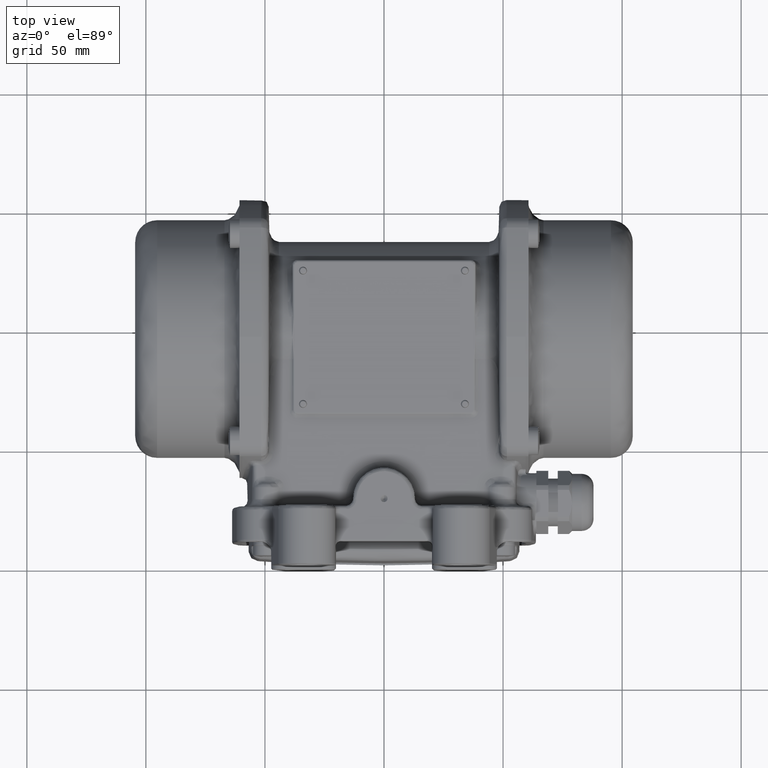
[diagram: clean part render]
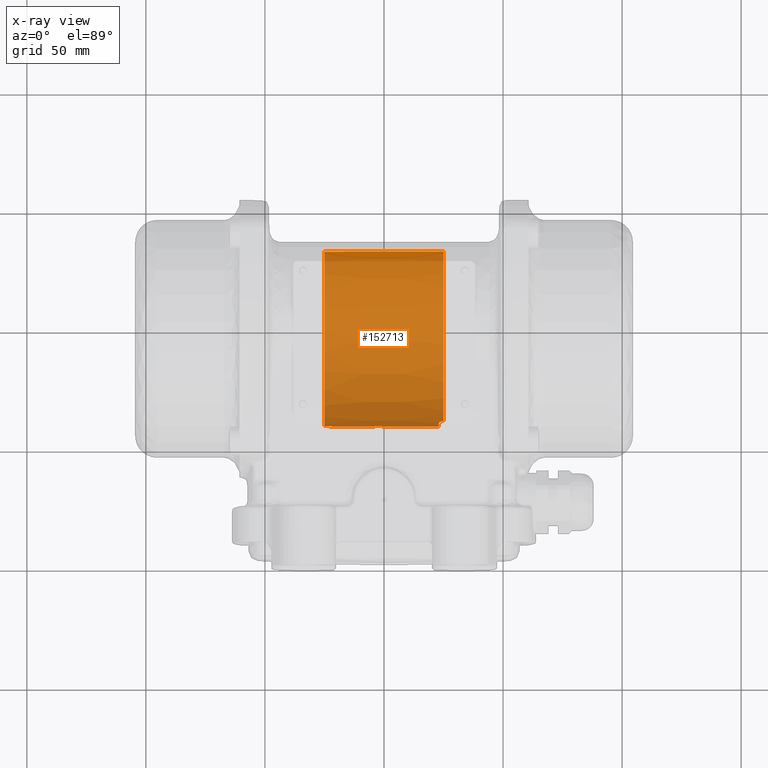
[diagram: x-ray — body ghosted, one internal face saturated and labeled with its STEP entity id]
A machine part, top view, then the same camera in x-ray: the body is ghosted and one INTERNAL B-rep face — a face not visible from any outside direction — is saturated and labeled: STEP entity #152713.
In plain terms, the highlighted conical surface has half-angle 0.029 deg.
Its self-contained STEP definition (entity closure, byte-faithful):
#2226 = DIRECTION ( 'NONE',  ( 1.000000000000000000, 7.990544917362570300E-016, -4.723549287887799400E-017 ) ) ;
#2253 = CARTESIAN_POINT ( 'NONE',  ( -3.252729636410869800, 59.35605258592232000, -2.216483834105219300 ) ) ;
#3502 = CARTESIAN_POINT ( 'NONE',  ( -0.6412301497180724600, 59.31520289451669500, -1.423340688478408600 ) ) ;
#4525 = CARTESIAN_POINT ( 'NONE',  ( -0.4718400590272856000, 59.30615043867537400, -1.169555660667954200 ) ) ;
#4998 = ORIENTED_EDGE ( 'NONE', *, *, #14295, .T. ) ;
#5316 = ORIENTED_EDGE ( 'NONE', *, *, #89027, .F. ) ;
#6103 = CARTESIAN_POINT ( 'NONE',  ( -25.00000000000570200, 96.00000000000000000, 5.993356949226309500E-015 ) ) ;
#7030 = DIRECTION ( 'NONE',  ( -6.320108947193921500E-014, -1.000000000000000000, 3.356031614387180500E-016 ) ) ;
#7330 = VERTEX_POINT ( 'NONE', #12724 ) ;
#11605 = CARTESIAN_POINT ( 'NONE',  ( 23.72089685327585000, 61.45279928222824900, -12.45754656484610100 ) ) ;
#12724 = CARTESIAN_POINT ( 'NONE',  ( 23.00050093865930400, 60.72720868270539500, -10.22166263790225900 ) ) ;
#14218 = CARTESIAN_POINT ( 'NONE',  ( -3.535506391044049000, 59.34929881489811300, -2.099381897415259200 ) ) ;
#14295 = EDGE_CURVE ( 'NONE', #19686, #113518, #104674, .T. ) ;
#14729 = CARTESIAN_POINT ( 'NONE',  ( -4.259110477997707800, 59.32198462016633300, -1.544697134057706900 ) ) ;
#15234 = CARTESIAN_POINT ( 'NONE',  ( 24.42159407510920500, 61.73518275234855700, -13.21705350051813200 ) ) ;
#15549 = DIRECTION ( 'NONE',  ( -1.323494750064048900E-015, -1.000000000000000000, 3.356031614387179500E-016 ) ) ;
#16066 = DIRECTION ( 'NONE',  ( 1.000000000000000000, 7.990544917362570300E-016, -4.723549287887799400E-017 ) ) ;
#19127 = VERTEX_POINT ( 'NONE', #140554 ) ;
#19135 = DIRECTION ( 'NONE',  ( 0.9999998750000235200, 0.0004999999375007244000, -4.746452086648995000E-017 ) ) ;
#19686 = VERTEX_POINT ( 'NONE', #119716 ) ;
#19774 = VERTEX_POINT ( 'NONE', #147364 ) ;
#26962 = CARTESIAN_POINT ( 'NONE',  ( -1.884818731508469200, 59.35873633931652200, -2.273741837971616300 ) ) ;
#28551 = ORIENTED_EDGE ( 'NONE', *, *, #48206, .T. ) ;
#28602 = EDGE_CURVE ( 'NONE', #32527, #57797, #102796, .T. ) ;
#32527 = VERTEX_POINT ( 'NONE', #138237 ) ;
#38099 = CARTESIAN_POINT ( 'NONE',  ( 25.00000000000335400, 59.27499999999999900, 1.595660840911890100E-014 ) ) ;
#38738 = CARTESIAN_POINT ( 'NONE',  ( 23.62402986130408100, 61.40219546509167300, -12.31629585688088300 ) ) ;
#38966 = CARTESIAN_POINT ( 'NONE',  ( -0.1787388642586431600, 59.28856123856314800, -0.3059890098570064400 ) ) ;
#39104 = DIRECTION ( 'NONE',  ( -9.012777392527525800E-014, -1.000000000000000000, 5.664673679639469200E-015 ) ) ;
#39412 = EDGE_CURVE ( 'NONE', #19686, #48599, #65758, .T. ) ;
#39489 = CARTESIAN_POINT ( 'NONE',  ( -1.463532535734798600, 59.34823085862306900, -2.098846497776484900 ) ) ;
#39533 = EDGE_CURVE ( 'NONE', #48599, #32527, #99304, .T. ) ;
#39790 = CARTESIAN_POINT ( 'NONE',  ( -4.836381847742692300, 59.28991819092384900, 1.736093801938260200E-014 ) ) ;
#40007 = CARTESIAN_POINT ( 'NONE',  ( -0.7397985902414056000, 59.32017184182234400, -1.543477443526484000 ) ) ;
#42531 = CARTESIAN_POINT ( 'NONE',  ( 25.00000000000570200, 96.00000000000000000, 3.631582305281980000E-015 ) ) ;
#42920 = EDGE_CURVE ( 'NONE', #19127, #19774, #96050, .T. ) ;
#43359 = ORIENTED_EDGE ( 'NONE', *, *, #42920, .F. ) ;
#47606 = CARTESIAN_POINT ( 'NONE',  ( 24.05293732523083200, 61.60032258387887800, -12.85961830144392000 ) ) ;
#48206 = EDGE_CURVE ( 'NONE', #19127, #131374, #100008, .T. ) ;
#48494 = AXIS2_PLACEMENT_3D ( 'NONE', #42531, #124943, #7030 ) ;
#48599 = VERTEX_POINT ( 'NONE', #121351 ) ;
#49178 = CARTESIAN_POINT ( 'NONE',  ( -2.500000000000043100, 59.36313084439834100, -2.335742930595151800 ) ) ;
#50684 = CARTESIAN_POINT ( 'NONE',  ( 23.37292945119450800, 61.24706023824921900, -11.87125174658245400 ) ) ;
#51959 = CARTESIAN_POINT ( 'NONE',  ( -0.2829545771154847200, 59.29508659005801300, -0.7527262425841453300 ) ) ;
#52258 = CARTESIAN_POINT ( 'NONE',  ( -4.599306307835030700, 59.30416365201031700, -1.036402890591841700 ) ) ;
#53260 = CARTESIAN_POINT ( 'NONE',  ( -4.774325123670333700, 59.29396702934050000, -0.6151707017215801700 ) ) ;
#55232 = FACE_OUTER_BOUND ( 'NONE', #94444, .T. ) ;
#56512 = CARTESIAN_POINT ( 'NONE',  ( 24.99999999999024800, 61.88346610134230000, -13.59366548601770000 ) ) ;
#57797 = VERTEX_POINT ( 'NONE', #56512 ) ;
#59303 = CARTESIAN_POINT ( 'NONE',  ( -4.836381847742692300, 59.28991819092384900, 1.736093801938260200E-014 ) ) ;
#59547 = CARTESIAN_POINT ( 'NONE',  ( 23.00050093865930400, 60.72720868270539500, -10.22166263790225900 ) ) ;
#61165 = CARTESIAN_POINT ( 'NONE',  ( -3.104435116061385400, 59.35875424489204700, -2.261344284093443200 ) ) ;
#62170 = CARTESIAN_POINT ( 'NONE',  ( -3.669624625570435700, 59.34528068126304100, -2.027726339798474200 ) ) ;
#62887 = CARTESIAN_POINT ( 'NONE',  ( -0.4001374881047111700, 59.30203300193309700, -1.035461915668277600 ) ) ;
#63394 = CARTESIAN_POINT ( 'NONE',  ( -0.1635977628729321500, 59.28758179888141900, 1.714100086057298100E-014 ) ) ;
#65758 = CIRCLE ( 'NONE', #119212, 36.70000000000000300 ) ;
#66173 = CARTESIAN_POINT ( 'NONE',  ( 23.00049999993799700, 96.00000000000000000, 3.631582305281980000E-015 ) ) ;
#69173 = VECTOR ( 'NONE', #109564, 999.9999999999998900 ) ;
#72595 = CARTESIAN_POINT ( 'NONE',  ( 25.00000000000340000, 96.00000000000000000, 3.631582305281980000E-015 ) ) ;
#74173 = CARTESIAN_POINT ( 'NONE',  ( -4.043647671005123500, 59.33157364481183300, -1.759920397203154700 ) ) ;
#74682 = CARTESIAN_POINT ( 'NONE',  ( -4.526671611554758300, 59.30826163684180600, -1.172217094355803200 ) ) ;
#75955 = CARTESIAN_POINT ( 'NONE',  ( -1.072591493842060900, 59.33485749331749300, -1.855509421161615400 ) ) ;
#76244 = CARTESIAN_POINT ( 'NONE',  ( -4.836381847742691400, 59.28991819092390600, -0.3085693058645563300 ) ) ;
#78804 = ORIENTED_EDGE ( 'NONE', *, *, #83577, .F. ) ;
#79205 = CARTESIAN_POINT ( 'NONE',  ( 23.00049999993802500, 59.27599975000003200, 1.605072025787264500E-014 ) ) ;
#83577 = EDGE_CURVE ( 'NONE', #7330, #131374, #116768, .T. ) ;
#86146 = DIRECTION ( 'NONE',  ( -1.322593800608593500E-015, -1.000000000000000000, 3.356031614387180500E-016 ) ) ;
#86175 = CARTESIAN_POINT ( 'NONE',  ( -2.805985098601247300, 59.36231070398045500, -2.320613692760155700 ) ) ;
#86912 = CARTESIAN_POINT ( 'NONE',  ( -2.191428635080916000, 59.36297633144895500, -2.335744279008765900 ) ) ;
#87924 = CARTESIAN_POINT ( 'NONE',  ( -1.327717441794750200, 59.34402594341265300, -2.026274920113948900 ) ) ;
#89027 = EDGE_CURVE ( 'NONE', #19774, #113518, #128578, .T. ) ;
#94444 = EDGE_LOOP ( 'NONE', ( #146102, #133497, #4998, #5316, #43359, #28551, #78804, #138292, #124311 ) ) ;
#95006 = CARTESIAN_POINT ( 'NONE',  ( 23.04672030812613000, 60.92992410340576700, -10.90238595686627400 ) ) ;
#96050 = B_SPLINE_CURVE_WITH_KNOTS ( 'NONE', 3,
 ( #63394, #147481, #38966, #146966, #51959, #62887, #4525, #3502, #40007, #135461, #75955, #87924, #39489, #26962, #86912, #99401 ),
 .UNSPECIFIED., .F., .F.,
 ( 4, 2, 2, 2, 2, 2, 2, 4 ),
 ( -0.003650236517739228100, -0.003193956953021385700, -0.002737677388303543000, -0.002281397823585700600, -0.001825118258867858300, -0.001368838694150016400, -0.0009125591294321736000, 3.511513996246051800E-015 ),
 .UNSPECIFIED. ) ;
#97544 = CARTESIAN_POINT ( 'NONE',  ( 25.00000000000335400, 59.27499999999999900, 1.595660840911890100E-014 ) ) ;
#98138 = CARTESIAN_POINT ( 'NONE',  ( -4.355820421909641000, 59.31721149293487400, -1.427254836246929500 ) ) ;
#99304 = LINE ( 'NONE', #137589, #110528 ) ;
#99401 = CARTESIAN_POINT ( 'NONE',  ( -2.500000000000043100, 59.36313084439834100, -2.335742930595151800 ) ) ;
#100008 = LINE ( 'NONE', #38099, #139315 ) ;
#102796 = CIRCLE ( 'NONE', #48494, 36.72500000000000100 ) ;
#104674 = LINE ( 'NONE', #97544, #69173 ) ;
#107027 = CARTESIAN_POINT ( 'NONE',  ( 23.00050185826796000, 60.82711728135543400, -10.56642603821760900 ) ) ;
#109278 = CONICAL_SURFACE ( 'NONE', #149796, 36.72500000000000100, 0.0004999999583332531300 ) ;
#109564 = DIRECTION ( 'NONE',  ( 0.9999998750000235200, -0.0004999999374991262800, -4.706768541469835100E-017 ) ) ;
#110135 = CARTESIAN_POINT ( 'NONE',  ( 23.93514675274908000, 61.55183248594941100, -12.72914635685454600 ) ) ;
#110528 = VECTOR ( 'NONE', #19135, 999.9999999999998900 ) ;
#110631 = AXIS2_PLACEMENT_3D ( 'NONE', #66173, #125721, #39104 ) ;
#113518 = VERTEX_POINT ( 'NONE', #59303 ) ;
#114502 =( BOUNDED_CURVE ( )  B_SPLINE_CURVE ( 3, ( #123202, #154525, #15234, #47606, #110135, #11605, #38738, #122167, #50684, #119018, #134186, #95006, #107027, #59547 ),
 .UNSPECIFIED., .F., .F. ) 
 B_SPLINE_CURVE_WITH_KNOTS ( ( 4, 2, 2, 2, 2, 2, 4 ),
 ( 0.0000000000000000000, 0.2454992231900844600, 0.3712493526584027000, 0.4969994821267222400, 0.6227496115950417200, 0.7484997410633611500, 1.000000000000000000 ),
 .UNSPECIFIED. ) 
 CURVE ( )  GEOMETRIC_REPRESENTATION_ITEM ( )  RATIONAL_B_SPLINE_CURVE ( ( 0.9999995024249021000, 0.9999994858106736600, 0.9999994662822721000, 0.9999994332930328700, 0.9999994214210838900, 0.9999993971758838200, 0.9999993847878878600, 0.9999993596442090500, 0.9999993468880150600, 0.9999993211451236900, 0.9999993081716416200, 0.9999992701897129100, 0.9999992457496962300, 0.9999992226136489300 ) ) 
 REPRESENTATION_ITEM ( '' )  );
#116768 = CIRCLE ( 'NONE', #110631, 36.72400024999995300 ) ;
#119018 = CARTESIAN_POINT ( 'NONE',  ( 23.23878874002518200, 61.14120176434858000, -11.55650031273284700 ) ) ;
#119212 = AXIS2_PLACEMENT_3D ( 'NONE', #6103, #16066, #15549 ) ;
#119716 = CARTESIAN_POINT ( 'NONE',  ( -25.00000000000575200, 59.29999999999999700, 1.830999297402726100E-014 ) ) ;
#120451 = EDGE_CURVE ( 'NONE', #57797, #7330, #114502, .T. ) ;
#121351 = CARTESIAN_POINT ( 'NONE',  ( -25.00000000000573100, 132.7000000000000200, -1.200434599843457600E-014 ) ) ;
#122167 = CARTESIAN_POINT ( 'NONE',  ( 23.45004516310332200, 61.29932670660564000, -12.02314874712499600 ) ) ;
#123202 = CARTESIAN_POINT ( 'NONE',  ( 24.99999999999024800, 61.88346610134230000, -13.59366548601770000 ) ) ;
#124311 = ORIENTED_EDGE ( 'NONE', *, *, #28602, .F. ) ;
#124943 = DIRECTION ( 'NONE',  ( -1.000000000000000000, -7.763057492226890700E-016, -3.546604710857649400E-031 ) ) ;
#125721 = DIRECTION ( 'NONE',  ( -1.000000000000000000, -7.763057492226890700E-016, -3.546604710857649400E-031 ) ) ;
#128578 = B_SPLINE_CURVE_WITH_KNOTS ( 'NONE', 3,
 ( #49178, #132659, #86175, #61165, #2253, #14218, #62170, #145695, #74173, #14729, #98138, #74682, #52258, #53260, #76244, #39790 ),
 .UNSPECIFIED., .F., .F.,
 ( 4, 2, 2, 2, 2, 2, 2, 4 ),
 ( 3.511405576028803200E-015, 0.0004562744715055884800, 0.0009125489430076655600, 0.001368823414509742400, 0.001825097886011820300, 0.002281372357513898500, 0.002737646829015975900, 0.003650195772020132000 ),
 .UNSPECIFIED. ) ;
#131374 = VERTEX_POINT ( 'NONE', #79205 ) ;
#132659 = CARTESIAN_POINT ( 'NONE',  ( -2.654283960241974300, 59.36320810001076600, -2.335742256395875800 ) ) ;
#133497 = ORIENTED_EDGE ( 'NONE', *, *, #39412, .F. ) ;
#134186 = CARTESIAN_POINT ( 'NONE',  ( 23.18202211401078500, 61.08765871633841000, -11.39372083546158100 ) ) ;
#135461 = CARTESIAN_POINT ( 'NONE',  ( -0.9551062012346373000, 59.32997577164015700, -1.758844801050191400 ) ) ;
#137589 = CARTESIAN_POINT ( 'NONE',  ( 25.00000000000345000, 132.7250000000000200, -1.319095916842359700E-014 ) ) ;
#138237 = CARTESIAN_POINT ( 'NONE',  ( 25.00000000000567400, 132.7250000000000200, -1.319095916842370200E-014 ) ) ;
#138292 = ORIENTED_EDGE ( 'NONE', *, *, #120451, .F. ) ;
#139315 = VECTOR ( 'NONE', #146087, 999.9999999999998900 ) ;
#140554 = CARTESIAN_POINT ( 'NONE',  ( -0.1635977628729321500, 59.28758179888141900, 1.714100086057298100E-014 ) ) ;
#145695 = CARTESIAN_POINT ( 'NONE',  ( -3.923465074388911700, 59.33643497821903200, -1.858441202330977500 ) ) ;
#146087 = DIRECTION ( 'NONE',  ( 0.9999998750000235200, -0.0004999999374991262800, -4.706768541469835100E-017 ) ) ;
#146102 = ORIENTED_EDGE ( 'NONE', *, *, #39533, .F. ) ;
#146966 = CARTESIAN_POINT ( 'NONE',  ( -0.2380562811441478400, 59.29229172910584800, -0.6044344656998574800 ) ) ;
#147364 = CARTESIAN_POINT ( 'NONE',  ( -2.500000000000043100, 59.36313084439834100, -2.335742930595151800 ) ) ;
#147481 = CARTESIAN_POINT ( 'NONE',  ( -0.1635977628727408600, 59.28758179888149700, -0.1542874469323604300 ) ) ;
#149796 = AXIS2_PLACEMENT_3D ( 'NONE', #72595, #2226, #86146 ) ;
#152713 = ADVANCED_FACE ( 'NONE', ( #55232 ), #109278, .F. ) ;
#154525 = CARTESIAN_POINT ( 'NONE',  ( 24.69481194045367500, 61.81527770339715700, -13.42212225344165300 ) ) ;